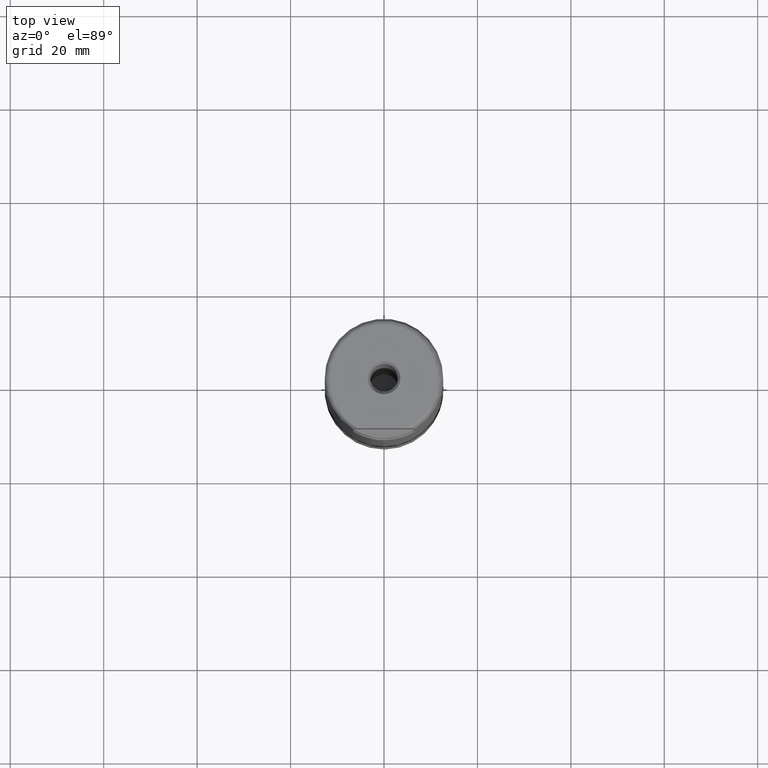
[diagram: clean part render]
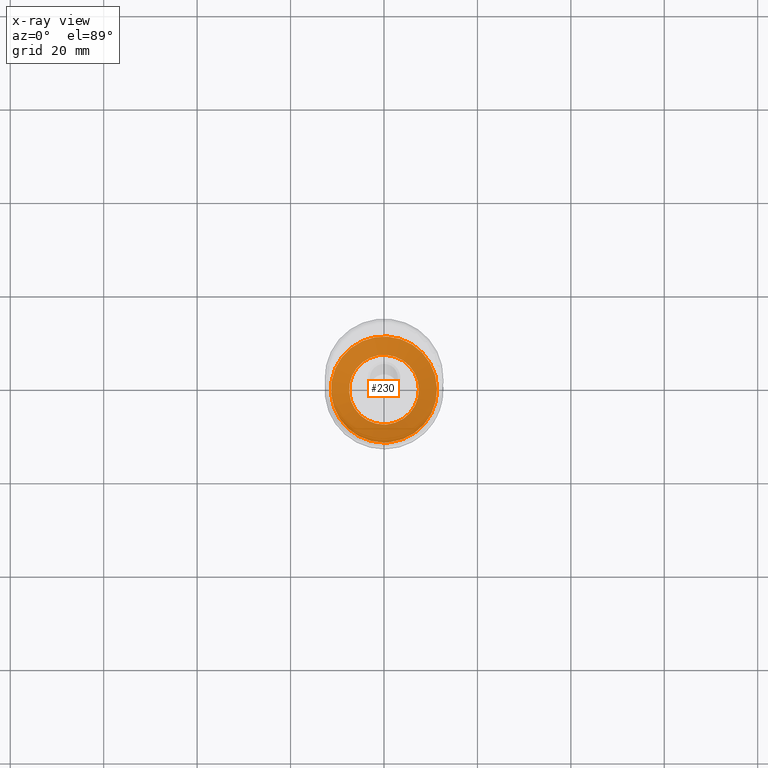
[diagram: x-ray — body ghosted, one internal face saturated and labeled with its STEP entity id]
A machine part, top view, then the same camera in x-ray: the body is ghosted and one INTERNAL B-rep face — a face not visible from any outside direction — is saturated and labeled: STEP entity #230.
In plain terms, the highlighted face is a SurfaceOfRevolution surface.
Its self-contained STEP definition (entity closure, byte-faithful):
#118=SURFACE_OF_REVOLUTION('',#802,#139);
#139=AXIS1_PLACEMENT('',#1599,#1046);
#230=ADVANCED_FACE('',(#346,#347),#118,.F.);
#346=FACE_BOUND('',#436,.T.);
#347=FACE_BOUND('',#437,.T.);
#436=EDGE_LOOP('',(#572));
#437=EDGE_LOOP('',(#573));
#572=ORIENTED_EDGE('',*,*,#711,.T.);
#573=ORIENTED_EDGE('',*,*,#712,.F.);
#643=VERTEX_POINT('',#1572);
#644=VERTEX_POINT('',#1586);
#711=EDGE_CURVE('',#643,#643,#753,.T.);
#712=EDGE_CURVE('',#644,#644,#754,.T.);
#753=CIRCLE('',#875,11.3582346503366);
#754=CIRCLE('',#876,7.46198423984085);
#802=B_SPLINE_CURVE_WITH_KNOTS('',3,(#1587,#1588,#1589,#1590,#1591,#1592,
#1593,#1594,#1595,#1596,#1597,#1598),.UNSPECIFIED.,.F.,.F.,(4,1,1,1,1,1,
1,1,1,4),(0.,0.221418157861957,0.365983083750147,0.510548009638337,0.655112935526527,
0.799677861414718,0.871960324358813,0.90810155583086,0.944242787302908,
1.),.UNSPECIFIED.);
#875=AXIS2_PLACEMENT_3D('',#1571,#1041,#1042);
#876=AXIS2_PLACEMENT_3D('',#1585,#1044,#1045);
#1041=DIRECTION('',(0.,1.17145536458252E-15,1.));
#1042=DIRECTION('',(0.,-1.,1.14546199038426E-15));
#1044=DIRECTION('',(0.,1.17145536458252E-15,1.));
#1045=DIRECTION('',(0.,-1.,1.16237412209665E-15));
#1046=DIRECTION('',(0.,1.17145536458252E-15,1.));
#1571=CARTESIAN_POINT('',(0.,8.56591029082361E-15,7.31219519736142));
#1572=CARTESIAN_POINT('',(0.,-11.3582346503366,7.31219519736143));
#1585=CARTESIAN_POINT('',(0.,6.03260540841171E-15,5.14966732049716));
#1586=CARTESIAN_POINT('',(0.,-7.46198423984084,5.14966732049717));
#1587=CARTESIAN_POINT('',(7.44263241348606,-0.537060364788832,5.14966761762804));
#1588=CARTESIAN_POINT('',(7.72479526063177,-0.536212608263279,5.319851776791));
#1589=CARTESIAN_POINT('',(8.19311667087047,-0.535379317988011,5.59795023877837));
#1590=CARTESIAN_POINT('',(8.85258000983731,-0.53608181685596,5.9752795548306));
#1591=CARTESIAN_POINT('',(9.41701626675732,-0.537992015684476,6.28827745402961));
#1592=CARTESIAN_POINT('',(9.98507463781776,-0.541048638881507,6.59465446465612));
#1593=CARTESIAN_POINT('',(10.4600893772582,-0.544035733592179,6.84691594980076));
#1594=CARTESIAN_POINT('',(10.7931240731429,-0.546571112455456,7.02251164122998));
#1595=CARTESIAN_POINT('',(10.98358384974,-0.547566911237371,7.12251655005486));
#1596=CARTESIAN_POINT('',(11.1525521368132,-0.550162765511046,7.21095305789321));
#1597=CARTESIAN_POINT('',(11.2730417300028,-0.535148863423146,7.27399070374262));
#1598=CARTESIAN_POINT('',(11.3460890887647,-0.52512547255068,7.31219519736142));
#1599=CARTESIAN_POINT('',(0.,0.,0.));